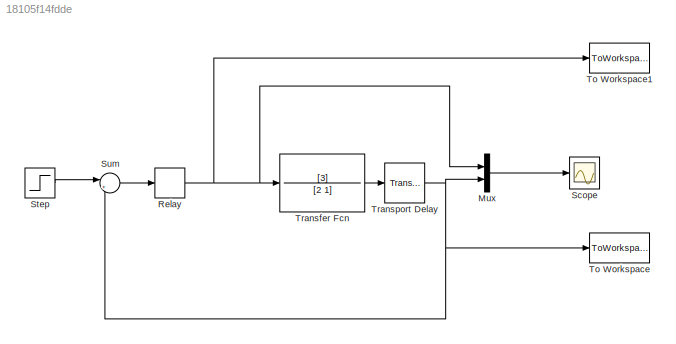
MODEL slx_18105f14fdde
KIND model
CONFIG AbsTol = auto
CONFIG EnableMultiTasking = off
CONFIG FixedStep = auto
CONFIG MaxStep = auto
CONFIG MinStep = auto
CONFIG RelTol = 1e-3
CONFIG SampleTimeConstraint = Unconstrained
CONFIG Solver = VariableStepAuto
CONFIG SolverName = VariableStepAuto
CONFIG StartTime = 0.0
CONFIG StopTime = 240
BLOCK [Mux] Mux
  DisplayOption = bar
  Inputs = 2
  Ports = [2, 1]
BLOCK [Relay] Relay
  InputProcessing = Elements as channels (sample based)
  OffOutputValue = -0.5
  OffSwitchValue = -0.9
  OnOutputValue = 1.5
  OnSwitchValue = 0.9
BLOCK [Scope] Scope
  NumInputPorts = 1
  Ports = [1]
  ScopeSpecificationString = Simulink.scopes.TimeScopeBlockCfg('CurrentConfiguration', extmgr.ConfigurationSet(extmgr.Configuration('Core','General UI',true),extmgr.Configuration('Core','Source UI',true),extmgr.Configuration('Sources','WiredSimulink',true),extmgr.Configuration('Visuals','Time Domain',true,'SerializedDisplays',{struct('MinYLimReal','-1.53706','MaxYLimReal','3.48197','YLabelReal','','MinYLimMag','0.00000','MaxY...<+2029ch>
BLOCK [Step] Step
  After = 2
  SampleTime = 0
  Time = 3
BLOCK [Sum] Sum
  IconShape = round
  InputSameDT = off
  Inputs = |+-
  OutDataTypeStr = Inherit: Inherit via internal rule
  Ports = [2, 1]
  SaturateOnIntegerOverflow = off
BLOCK [ToWorkspace] To Workspace
  FixptAsFi = on
  MaxDataPoints = inf
  Ports = [1]
  SampleTime = -1
  Save2DSignal = 3-D array (concatenate along third dimension)
  SaveFormat = Timeseries
  VariableName = y
BLOCK [ToWorkspace] To Workspace1
  FixptAsFi = on
  MaxDataPoints = inf
  Ports = [1]
  SampleTime = -1
  Save2DSignal = 3-D array (concatenate along third dimension)
  SaveFormat = Timeseries
  VariableName = u
BLOCK [TransferFcn] Transfer Fcn
  Denominator = [2 1]
  Numerator = [3]
BLOCK [TransportDelay] Transport Delay
  DelayTime = 0.1
  Ports = [1, 1]
LINE Mux:1 -> Scope:1
NET Relay:1 -> Mux:1, To Workspace1:1, Transfer Fcn:1
LINE Step:1 -> Sum:1
LINE Sum:1 -> Relay:1
LINE Transfer Fcn:1 -> Transport Delay:1
NET Transport Delay:1 -> Mux:2, Sum:2, To Workspace:1
note: NET lines group one-source signal fan-out (src -> all destinations, sorted); 1:1 wires keep LINE
